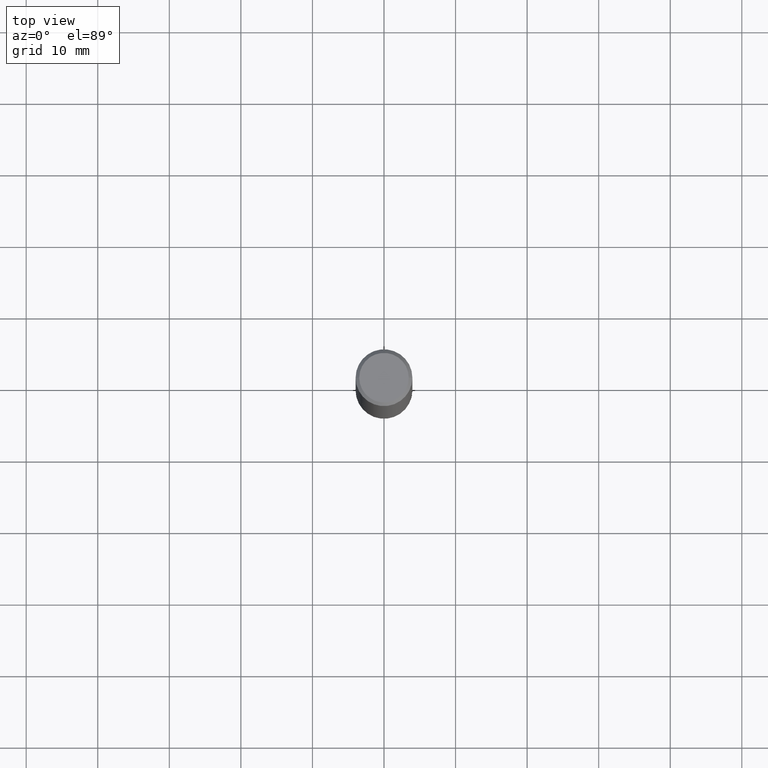
[diagram: clean part render]
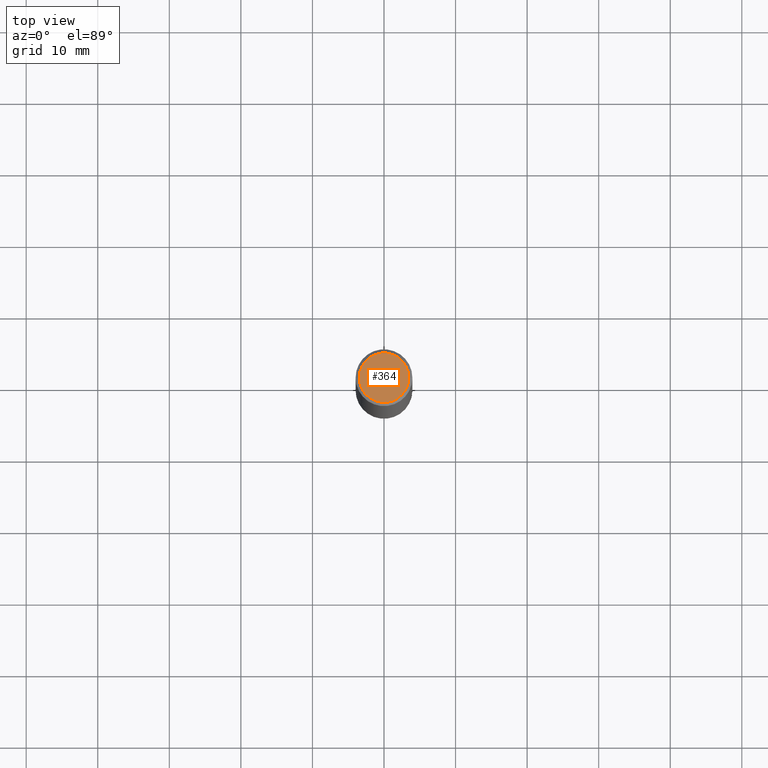
[diagram: same view with one face highlighted and labeled with its STEP entity id]
A machine part, top view. The second image highlights one B-rep face of the part: STEP entity #364.
In plain terms, the highlighted planar face has unit normal (0, -0, -1).
Its self-contained STEP definition (entity closure, byte-faithful):
#18 = CARTESIAN_POINT ( 'NONE',  ( 0.000000000000000000, 0.000000000000000000, 0.000000000000000000 ) ) ;
#19 = CIRCLE ( 'NONE', #349, 0.1362499999999997324 ) ;
#42 = AXIS2_PLACEMENT_3D ( 'NONE', #309, #232, #231 ) ;
#103 = CARTESIAN_POINT ( 'NONE',  ( -0.1362499999999997324, 9.863434782231830429E-16, -6.775751096333125871E-30 ) ) ;
#121 = FACE_OUTER_BOUND ( 'NONE', #311, .T. ) ;
#140 = ORIENTED_EDGE ( 'NONE', *, *, #211, .T. ) ;
#162 = ORIENTED_EDGE ( 'NONE', *, *, #276, .T. ) ;
#171 = CARTESIAN_POINT ( 'NONE',  ( 0.1362499999999997324, -1.038262645562516152E-15, 6.957025900226682464E-30 ) ) ;
#201 = PLANE ( 'NONE',  #42 ) ;
#211 = EDGE_CURVE ( 'NONE', #254, #336, #19, .T. ) ;
#213 = DIRECTION ( 'NONE',  ( -2.445468806185136597E-29, 3.491481338843145583E-15, 1.000000000000000000 ) ) ;
#231 = DIRECTION ( 'NONE',  ( -1.000000000000000000, 6.982962677686265922E-15, -4.876176775795935793E-29 ) ) ;
#232 = DIRECTION ( 'NONE',  ( 2.438088387897960049E-29, -3.491481338843145188E-15, -1.000000000000000000 ) ) ;
#246 = DIRECTION ( 'NONE',  ( -2.445468806185136597E-29, 3.491481338843145583E-15, 1.000000000000000000 ) ) ;
#254 = VERTEX_POINT ( 'NONE', #103 ) ;
#276 = EDGE_CURVE ( 'NONE', #336, #254, #291, .T. ) ;
#291 = CIRCLE ( 'NONE', #294, 0.1362499999999997324 ) ;
#294 = AXIS2_PLACEMENT_3D ( 'NONE', #18, #246, #358 ) ;
#305 = DIRECTION ( 'NONE',  ( 1.000000000000000000, -6.982962677686266711E-15, 4.876176775795936353E-29 ) ) ;
#309 = CARTESIAN_POINT ( 'NONE',  ( 9.514286648347519855E-16, 0.1362499999999997324, -4.757143324173776691E-16 ) ) ;
#311 = EDGE_LOOP ( 'NONE', ( #140, #162 ) ) ;
#336 = VERTEX_POINT ( 'NONE', #171 ) ;
#349 = AXIS2_PLACEMENT_3D ( 'NONE', #357, #213, #305 ) ;
#357 = CARTESIAN_POINT ( 'NONE',  ( 0.000000000000000000, 0.000000000000000000, 0.000000000000000000 ) ) ;
#358 = DIRECTION ( 'NONE',  ( 1.000000000000000000, -6.982962677686266711E-15, 4.876176775795936353E-29 ) ) ;
#364 = ADVANCED_FACE ( 'NONE', ( #121 ), #201, .F. ) ;